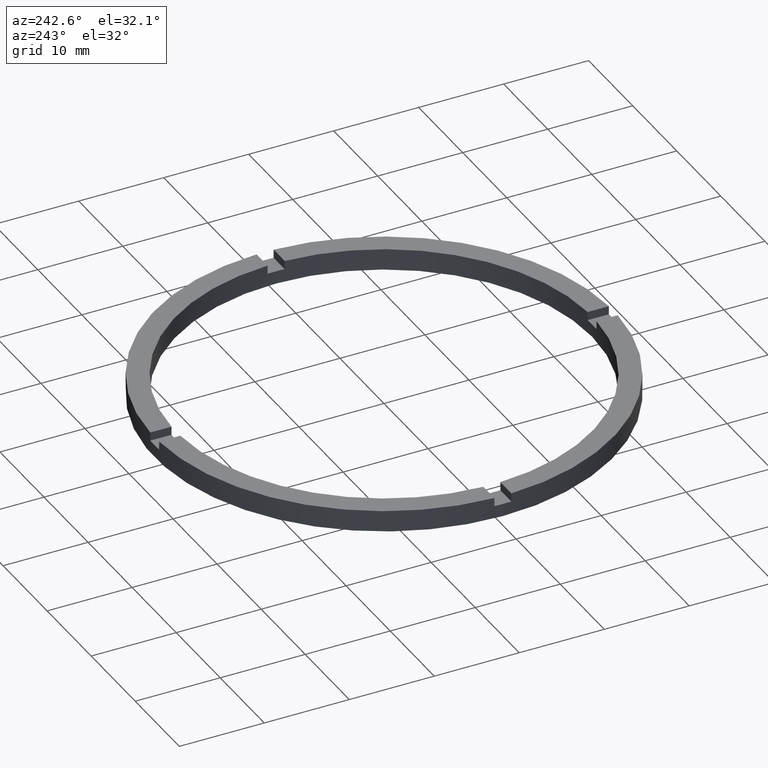
[diagram: clean part render]
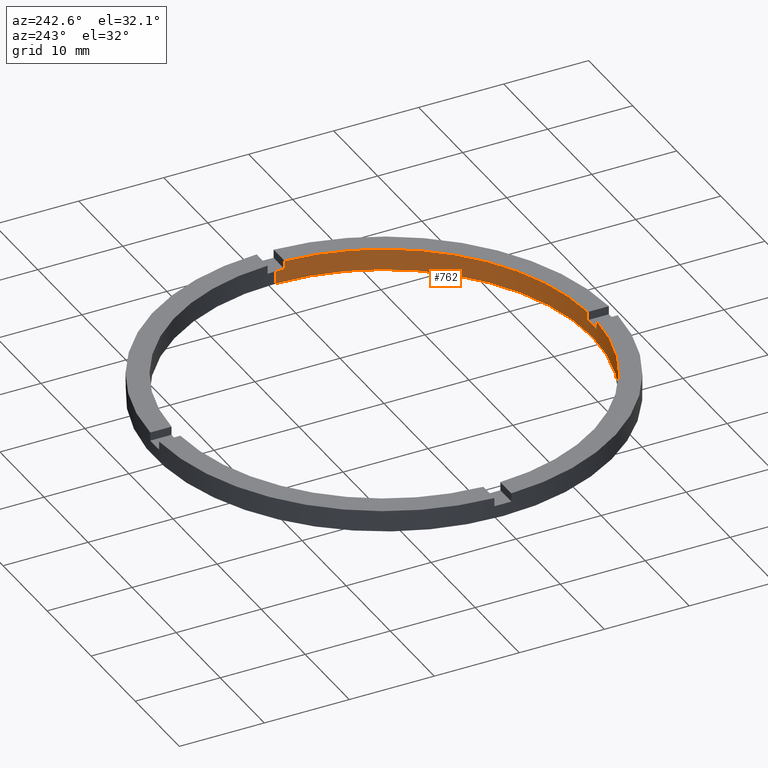
[diagram: same view with one face highlighted and labeled with its STEP entity id]
A machine part, auxiliary view. The second image highlights one B-rep face of the part: STEP entity #762.
In plain terms, the highlighted cylindrical surface (partial cylindrical patch) has radius 24.5 mm, axis along (-0, -0, -1).
Its self-contained STEP definition (entity closure, byte-faithful):
#6 = DIRECTION ( 'NONE',  ( -0.000000000000000000, -0.000000000000000000, -1.000000000000000000 ) ) ;
#11 = CARTESIAN_POINT ( 'NONE',  ( -24.50000000000000000, 0.000000000000000000, 1.500000000000000000 ) ) ;
#30 = EDGE_CURVE ( 'NONE', #583, #446, #315, .T. ) ;
#37 = LINE ( 'NONE', #642, #61 ) ;
#42 = DIRECTION ( 'NONE',  ( 1.000000000000000000, 0.000000000000000000, 0.000000000000000000 ) ) ;
#43 = CARTESIAN_POINT ( 'NONE',  ( -24.47958332978729601, -1.000000000000026201, 2.500000000000000000 ) ) ;
#57 = DIRECTION ( 'NONE',  ( 1.000000000000000000, 0.000000000000000000, 0.000000000000000000 ) ) ;
#58 = ORIENTED_EDGE ( 'NONE', *, *, #274, .F. ) ;
#61 = VECTOR ( 'NONE', #581, 1000.000000000000000 ) ;
#64 = EDGE_CURVE ( 'NONE', #332, #717, #37, .T. ) ;
#70 = ORIENTED_EDGE ( 'NONE', *, *, #748, .F. ) ;
#79 = CIRCLE ( 'NONE', #107, 24.50000000000000000 ) ;
#84 = EDGE_CURVE ( 'NONE', #601, #713, #79, .T. ) ;
#97 = DIRECTION ( 'NONE',  ( -0.000000000000000000, -0.000000000000000000, -1.000000000000000000 ) ) ;
#102 = CARTESIAN_POINT ( 'NONE',  ( 24.47958332978728890, -1.000000000000157208, 2.500000000000000000 ) ) ;
#107 = AXIS2_PLACEMENT_3D ( 'NONE', #724, #528, #770 ) ;
#110 = LINE ( 'NONE', #167, #633 ) ;
#125 = EDGE_CURVE ( 'NONE', #708, #446, #304, .T. ) ;
#141 = VECTOR ( 'NONE', #6, 1000.000000000000000 ) ;
#161 = CIRCLE ( 'NONE', #324, 24.50000000000000000 ) ;
#167 = CARTESIAN_POINT ( 'NONE',  ( -24.47958332978729601, -1.000000000000026201, 2.500000000000000000 ) ) ;
#178 = DIRECTION ( 'NONE',  ( 0.000000000000000000, 0.000000000000000000, 1.000000000000000000 ) ) ;
#182 = CIRCLE ( 'NONE', #755, 24.50000000000000000 ) ;
#208 = ORIENTED_EDGE ( 'NONE', *, *, #543, .T. ) ;
#211 = ORIENTED_EDGE ( 'NONE', *, *, #84, .T. ) ;
#216 = VERTEX_POINT ( 'NONE', #43 ) ;
#232 = CARTESIAN_POINT ( 'NONE',  ( 0.000000000000000000, 0.000000000000000000, 2.500000000000000000 ) ) ;
#233 = ORIENTED_EDGE ( 'NONE', *, *, #254, .F. ) ;
#251 = CARTESIAN_POINT ( 'NONE',  ( -24.50000000000000000, 0.000000000000000000, 2.500000000000000000 ) ) ;
#254 = EDGE_CURVE ( 'NONE', #348, #478, #664, .T. ) ;
#264 = ORIENTED_EDGE ( 'NONE', *, *, #652, .T. ) ;
#274 = EDGE_CURVE ( 'NONE', #604, #717, #161, .T. ) ;
#282 = CARTESIAN_POINT ( 'NONE',  ( -1.000000000000160316, -24.47958332978728890, 1.500000000000000000 ) ) ;
#286 = DIRECTION ( 'NONE',  ( 1.000000000000000000, 0.000000000000000000, 0.000000000000000000 ) ) ;
#289 = CARTESIAN_POINT ( 'NONE',  ( 0.000000000000000000, 0.000000000000000000, 0.000000000000000000 ) ) ;
#304 = CIRCLE ( 'NONE', #540, 24.50000000000000000 ) ;
#311 = CARTESIAN_POINT ( 'NONE',  ( -1.000000000000160316, -24.47958332978728890, 2.500000000000000000 ) ) ;
#314 = ORIENTED_EDGE ( 'NONE', *, *, #476, .F. ) ;
#315 = LINE ( 'NONE', #573, #594 ) ;
#318 = ORIENTED_EDGE ( 'NONE', *, *, #30, .F. ) ;
#324 = AXIS2_PLACEMENT_3D ( 'NONE', #289, #432, #42 ) ;
#327 = CARTESIAN_POINT ( 'NONE',  ( 0.000000000000000000, 0.000000000000000000, 2.500000000000000000 ) ) ;
#332 = VERTEX_POINT ( 'NONE', #749 ) ;
#333 = AXIS2_PLACEMENT_3D ( 'NONE', #232, #97, #526 ) ;
#348 = VERTEX_POINT ( 'NONE', #282 ) ;
#353 = CYLINDRICAL_SURFACE ( 'NONE', #333, 24.50000000000000000 ) ;
#372 = CIRCLE ( 'NONE', #429, 24.50000000000000000 ) ;
#381 = CARTESIAN_POINT ( 'NONE',  ( -24.47958332978729601, -1.000000000000026201, 1.500000000000000000 ) ) ;
#387 = VECTOR ( 'NONE', #644, 1000.000000000000000 ) ;
#398 = DIRECTION ( 'NONE',  ( -0.000000000000000000, -0.000000000000000000, -1.000000000000000000 ) ) ;
#411 = EDGE_CURVE ( 'NONE', #601, #604, #422, .T. ) ;
#422 = LINE ( 'NONE', #251, #387 ) ;
#429 = AXIS2_PLACEMENT_3D ( 'NONE', #327, #178, #712 ) ;
#432 = DIRECTION ( 'NONE',  ( 0.000000000000000000, 0.000000000000000000, 1.000000000000000000 ) ) ;
#434 = CIRCLE ( 'NONE', #656, 24.50000000000000000 ) ;
#446 = VERTEX_POINT ( 'NONE', #102 ) ;
#453 = CARTESIAN_POINT ( 'NONE',  ( 0.9999999999998397948, -24.47958332978729956, 2.500000000000000000 ) ) ;
#476 = EDGE_CURVE ( 'NONE', #708, #721, #654, .T. ) ;
#478 = VERTEX_POINT ( 'NONE', #618 ) ;
#479 = DIRECTION ( 'NONE',  ( 0.000000000000000000, 0.000000000000000000, 1.000000000000000000 ) ) ;
#492 = DIRECTION ( 'NONE',  ( 0.000000000000000000, 0.000000000000000000, 1.000000000000000000 ) ) ;
#514 = DIRECTION ( 'NONE',  ( -0.000000000000000000, 0.000000000000000000, 1.000000000000000000 ) ) ;
#522 = CARTESIAN_POINT ( 'NONE',  ( 24.50000000000000000, 3.000384657911015469E-15, 0.000000000000000000 ) ) ;
#526 = DIRECTION ( 'NONE',  ( -1.000000000000000000, 0.000000000000000000, 0.000000000000000000 ) ) ;
#528 = DIRECTION ( 'NONE',  ( 0.000000000000000000, 0.000000000000000000, 1.000000000000000000 ) ) ;
#540 = AXIS2_PLACEMENT_3D ( 'NONE', #746, #775, #286 ) ;
#541 = CARTESIAN_POINT ( 'NONE',  ( -24.50000000000000000, 0.000000000000000000, 0.000000000000000000 ) ) ;
#543 = EDGE_CURVE ( 'NONE', #348, #721, #434, .T. ) ;
#546 = DIRECTION ( 'NONE',  ( 0.000000000000000000, 0.000000000000000000, 1.000000000000000000 ) ) ;
#550 = DIRECTION ( 'NONE',  ( 1.000000000000000000, 0.000000000000000000, 0.000000000000000000 ) ) ;
#573 = CARTESIAN_POINT ( 'NONE',  ( 24.47958332978728890, -1.000000000000157208, 2.500000000000000000 ) ) ;
#580 = ORIENTED_EDGE ( 'NONE', *, *, #411, .F. ) ;
#581 = DIRECTION ( 'NONE',  ( -0.000000000000000000, -0.000000000000000000, -1.000000000000000000 ) ) ;
#583 = VERTEX_POINT ( 'NONE', #747 ) ;
#590 = ORIENTED_EDGE ( 'NONE', *, *, #750, .T. ) ;
#594 = VECTOR ( 'NONE', #492, 1000.000000000000000 ) ;
#601 = VERTEX_POINT ( 'NONE', #11 ) ;
#604 = VERTEX_POINT ( 'NONE', #541 ) ;
#606 = EDGE_LOOP ( 'NONE', ( #264, #694, #58, #580, #211, #70, #590, #233, #208, #314, #709, #318 ) ) ;
#610 = CARTESIAN_POINT ( 'NONE',  ( 0.000000000000000000, 0.000000000000000000, 1.500000000000000000 ) ) ;
#618 = CARTESIAN_POINT ( 'NONE',  ( -1.000000000000160316, -24.47958332978728890, 2.500000000000000000 ) ) ;
#620 = CARTESIAN_POINT ( 'NONE',  ( 0.000000000000000000, 0.000000000000000000, 1.500000000000000000 ) ) ;
#632 = CARTESIAN_POINT ( 'NONE',  ( 0.9999999999998397948, -24.47958332978729956, 1.500000000000000000 ) ) ;
#633 = VECTOR ( 'NONE', #398, 1000.000000000000000 ) ;
#638 = FACE_OUTER_BOUND ( 'NONE', #606, .T. ) ;
#642 = CARTESIAN_POINT ( 'NONE',  ( 24.50000000000000000, 3.000384657911015469E-15, 2.500000000000000000 ) ) ;
#644 = DIRECTION ( 'NONE',  ( -0.000000000000000000, -0.000000000000000000, -1.000000000000000000 ) ) ;
#652 = EDGE_CURVE ( 'NONE', #583, #332, #182, .T. ) ;
#654 = LINE ( 'NONE', #453, #141 ) ;
#656 = AXIS2_PLACEMENT_3D ( 'NONE', #620, #514, #550 ) ;
#664 = LINE ( 'NONE', #311, #665 ) ;
#665 = VECTOR ( 'NONE', #479, 1000.000000000000000 ) ;
#694 = ORIENTED_EDGE ( 'NONE', *, *, #64, .T. ) ;
#703 = CARTESIAN_POINT ( 'NONE',  ( 0.9999999999998397948, -24.47958332978729956, 2.500000000000000000 ) ) ;
#708 = VERTEX_POINT ( 'NONE', #703 ) ;
#709 = ORIENTED_EDGE ( 'NONE', *, *, #125, .T. ) ;
#712 = DIRECTION ( 'NONE',  ( 1.000000000000000000, 0.000000000000000000, 0.000000000000000000 ) ) ;
#713 = VERTEX_POINT ( 'NONE', #381 ) ;
#717 = VERTEX_POINT ( 'NONE', #522 ) ;
#721 = VERTEX_POINT ( 'NONE', #632 ) ;
#724 = CARTESIAN_POINT ( 'NONE',  ( 0.000000000000000000, 0.000000000000000000, 1.500000000000000000 ) ) ;
#746 = CARTESIAN_POINT ( 'NONE',  ( 0.000000000000000000, 0.000000000000000000, 2.500000000000000000 ) ) ;
#747 = CARTESIAN_POINT ( 'NONE',  ( 24.47958332978728890, -1.000000000000157208, 1.500000000000000000 ) ) ;
#748 = EDGE_CURVE ( 'NONE', #216, #713, #110, .T. ) ;
#749 = CARTESIAN_POINT ( 'NONE',  ( 24.50000000000000000, 3.000384657911015469E-15, 1.500000000000000000 ) ) ;
#750 = EDGE_CURVE ( 'NONE', #216, #478, #372, .T. ) ;
#755 = AXIS2_PLACEMENT_3D ( 'NONE', #610, #546, #57 ) ;
#762 = ADVANCED_FACE ( 'NONE', ( #638 ), #353, .F. ) ;
#770 = DIRECTION ( 'NONE',  ( 1.000000000000000000, 0.000000000000000000, 0.000000000000000000 ) ) ;
#775 = DIRECTION ( 'NONE',  ( 0.000000000000000000, 0.000000000000000000, 1.000000000000000000 ) ) ;